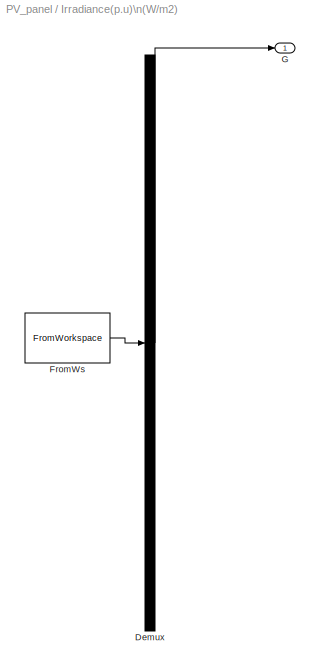
MODEL PV_panel
KIND model
BLOCK [Reference] Controlled Current\nSource  REF=fl_lib/Electrical/Electrical Sources/Controlled Current\nSource
  ClassName = controlled_current
  ComponentPath = foundation.electrical.sources.controlled_current
  ComponentVariantNames = controlled_current
  ComponentVariants = foundation.electrical.sources.controlled_current
  InternalSimscapePortConfiguration = {\"Bottom\":[],\"Left\":[{\"id\":\"head\",\"label\":\"\",\"type\":\"foundation.electrical.electrical\"}],\"Right\":[{\"id\":\"iT\",\"label\":\"\",\"type\":\"input\"},{\"id\":\"tail\",\"label\":\"\",\"type\":\"foundation.electrical.electrical\"}],\"Top\":[]}
  LogSimulationData = off
  Ports = [0, 0, 0, 0, 0, 1, 2]
  SID = 362
  SchemaVersion = 1
  SourceBlock = fl_lib/Electrical/Electrical Sources/Controlled Current\nSource
  SourceFile = foundation.electrical.sources.controlled_current
  SourceProductBaseCode = SS
  SourceProductName = Simscape
  SourceType = Controlled Current\nSource
BLOCK [Reference] Current Sensor  REF=fl_lib/Electrical/Electrical Sensors/Current Sensor
  ClassName = current
  ComponentPath = foundation.electrical.sensors.current
  ComponentVariantNames = current
  ComponentVariants = foundation.electrical.sensors.current
  InternalSimscapePortConfiguration = {\"Bottom\":[],\"Left\":[{\"id\":\"p\",\"label\":\"+\",\"type\":\"foundation.electrical.electrical\"}],\"Right\":[{\"id\":\"I\",\"label\":\"I\",\"type\":\"output\"},{\"id\":\"n\",\"label\":\"-\",\"type\":\"foundation.electrical.electrical\"}],\"Top\":[]}
  LogSimulationData = off
  Ports = [0, 0, 0, 0, 0, 1, 2]
  SID = 363
  SchemaVersion = 1
  SourceBlock = fl_lib/Electrical/Electrical Sensors/Current Sensor
  SourceFile = foundation.electrical.sensors.current
  SourceProductBaseCode = SS
  SourceProductName = Simscape
  SourceType = Current Sensor
BLOCK [Reference] Diode  REF=ee_lib/Semiconductors &\nConverters/Diode
  BV = Inf
  BV_conf = compiletime
  BV_unit = V
  CJ = 0
  CJ0 = 0
  CJ0_conf = compiletime
  CJ0_unit = pF
  CJ_conf = compiletime
  CJ_unit = pF
  C_param = 1
  C_param_conf = compiletime
  C_param_unit = 1
  ClassName = Simscape variant
  ComponentPath = ee.semiconductors.diode
  ComponentVariantNames = No thermal port, Show thermal port
  ComponentVariants = ee.semiconductors.diode, ee.semiconductors.diode_thermal
  Cvec = [  3.5 1 0.4 ]
  Cvec_conf = compiletime
  Cvec_unit = pF
  EG = 1.11
  EG_conf = compiletime
  EG_param = ee.enum.diode.egapParam.material_si
  EG_param_conf = compiletime
  EG_param_unit = 1
  EG_unit = eV
  FC = 0.5
  FC_conf = compiletime
  FC_unit = 1
  Goff = 1e-08
  Goff_conf = compiletime
  Goff_unit = S
  I1 = 0.07
  I12 = [  0.07 2.2 ]
  I12_conf = compiletime
  I12_unit = A
  I1_T2 = 0.245
  I1_T2_conf = compiletime
  I1_T2_unit = A
  I1_conf = compiletime
  I1_unit = A
  IS = 1.541765286972375e-008
  IS_T2 = 1.25e-7
  IS_T2_conf = compiletime
  IS_T2_unit = A
  IS_conf = compiletime
  IS_unit = A
  InternalSimscapePortConfiguration = {\"Bottom\":[],\"Left\":[{\"id\":\"p\",\"label\":\"\",\"type\":\"foundation.electrical.electrical\"}],\"Right\":[{\"id\":\"n\",\"label\":\"\",\"type\":\"foundation.electrical.electrical\"}],\"Top\":[]}
  LogSimulationData = off
  Mgrad = 0.5
  Mgrad_conf = compiletime
  Mgrad_unit = 1
  ModelType = ee.enum.diode.modelType.exponential
  ModelType_conf = compiletime
  ModelType_unit = 1
  N_parallel = 1
  N_parallel_conf = compiletime
  N_parallel_unit = 1
  N_series = 1
  N_series_conf = compiletime
  N_series_unit = 1
  Ports = [0, 0, 0, 0, 0, 1, 1]
  Q_param = ee.enum.diode.recoveryParam.off
  Q_param_conf = compiletime
  Q_param_unit = 1
  Qrr = 1500
  Qrr_conf = compiletime
  Qrr_unit = s*uA
  RS = 0.001
  RS_conf = compiletime
  RS_unit = Ohm
  Ron = 0.3
  Ron_conf = compiletime
  Ron_unit = Ohm
  Rth = [0, 10]
  Rth_Foster = [4, 6]
  Rth_Foster_conf = compiletime
  Rth_Foster_unit = K/W
  Rth_conf = compiletime
  Rth_unit = K/W
  Rz = 0.3
  Rz_conf = compiletime
  Rz_unit = Ohm
  SID = 364
  SchemaVersion = 1
  SourceBlock = ee_lib/Semiconductors &\nConverters/Diode
  SourceFile = ee.semiconductors.diode
  SourceProductBaseCode = PS
  SourceProductName = Simscape Electrical
  SourceType = Diode
  TT = 50
  TT_conf = compiletime
  TT_unit = ns
  T_param = ee.enum.diode.temperatureParam.off
  T_param_conf = compiletime
  T_param_unit = 1
  Tdevice = 25
  Tdevice_conf = compiletime
  Tdevice_unit = degC
  Tmeas = 25
  Tmeas2 = 125
  Tmeas2_conf = compiletime
  Tmeas2_unit = degC
  Tmeas_conf = compiletime
  Tmeas_unit = C
  V1 = 0.7
  V12 = [  15 21 ]
  V12_conf = compiletime
  V12_unit = V
  V1_T2 = 0.5
  V1_T2_conf = compiletime
  V1_T2_unit = V
  V1_conf = compiletime
  V1_unit = V
  VJ = 1
  VJ_conf = compiletime
  VJ_unit = V
  Vf = 0.6
  Vf_conf = compiletime
  Vf_unit = V
  Vvec = [  0.1 10 100 ]
  Vvec_conf = compiletime
  Vvec_unit = V
  XTI = 3
  XTI_conf = compiletime
  XTI_param = ee.enum.diode.xtiParam.pn
  XTI_param_conf = compiletime
  XTI_param_unit = 1
  XTI_unit = 1
  dBVdT = 0
  dBVdT_conf = compiletime
  dBVdT_unit = V/K
  didt = -750
  didt_conf = compiletime
  didt_unit = A/us
  ec = 1
  ec_conf = compiletime
  ec_unit = 1
  i = 0
  iF = 4
  iF_conf = compiletime
  iF_unit = A
  iRM = -7.15
  iRM_conf = compiletime
  iRM_unit = A
  i_capacitor = 0
  i_capacitor_nominal_specify = off
  i_capacitor_nominal_unit = A
  i_capacitor_nominal_value = 1
  i_capacitor_priority = None
  i_capacitor_specify = off
  i_capacitor_unit = A
  i_nominal_specify = off
  i_nominal_unit = A
  i_nominal_value = 1
  i_priority = None
  i_specify = off
  i_unit = A
  power_dissipated = 0
  power_dissipated_nominal_specify = off
  power_dissipated_nominal_unit = W
  power_dissipated_nominal_value = 1
  power_dissipated_priority = None
  power_dissipated_specify = off
  power_dissipated_unit = W
  prmExp = 1
  prmExp_conf = compiletime
  prmExp_unit = 1
  tau = 100
  tau_conf = compiletime
  tau_unit = ns
  thermal_mass = [0, 1]
  thermal_mass_Foster = [1.5, 3]
  thermal_mass_Foster_conf = compiletime
  thermal_mass_Foster_unit = J/K
  thermal_mass_conf = compiletime
  thermal_mass_initial_temperatures = [25, 25]
  thermal_mass_initial_temperatures_conf = compiletime
  thermal_mass_initial_temperatures_unit = degC
  thermal_mass_parameterization = ee.enum.thermalNetwork.timeconstant
  thermal_mass_parameterization_conf = compiletime
  thermal_mass_parameterization_unit = 1
  thermal_mass_unit = J/K
  thermal_network_parameterization = ee.enum.thermalNetworkTopology.cauer
  thermal_network_parameterization_conf = compiletime
  thermal_network_parameterization_unit = 1
  thermal_time_constant = [0, 10]
  thermal_time_constant_Foster = [6, 18]
  thermal_time_constant_Foster_conf = compiletime
  thermal_time_constant_Foster_unit = s
  thermal_time_constant_conf = compiletime
  thermal_time_constant_unit = s
  trr = 115
  trr_conf = compiletime
  trr_factor = 3
  trr_factor_conf = compiletime
  trr_factor_unit = 1
  trr_unit = ns
  v = 0
  v_capacitor = 0
  v_capacitor_nominal_specify = off
  v_capacitor_nominal_unit = V
  v_capacitor_nominal_value = 1
  v_capacitor_priority = None
  v_capacitor_specify = off
  v_capacitor_unit = V
  v_nominal_specify = off
  v_nominal_unit = V
  v_nominal_value = 1
  v_priority = None
  v_specify = off
  v_unit = V
BLOCK [Reference] Electrical Reference  REF=fl_lib/Electrical/Electrical Elements/Electrical Reference
  ClassName = reference
  ComponentPath = foundation.electrical.elements.reference
  ComponentVariantNames = reference
  ComponentVariants = foundation.electrical.elements.reference
  InternalSimscapePortConfiguration = {\"Bottom\":[],\"Left\":[{\"id\":\"V\",\"label\":\"\",\"type\":\"foundation.electrical.electrical\"}],\"Right\":[],\"Top\":[]}
  LogSimulationData = off
  Ports = [0, 0, 0, 0, 0, 1]
  SID = 365
  SchemaVersion = 1
  SourceBlock = fl_lib/Electrical/Electrical Elements/Electrical Reference
  SourceFile = foundation.electrical.elements.reference
  SourceProductBaseCode = SS
  SourceProductName = Simscape
  SourceType = Electrical Reference
BLOCK [Goto] Goto1
  GotoTag = V
  SID = 820
BLOCK [From] I1
  GotoTag = V
  SID = 819
BLOCK [Display] Id1
  Decimation = 1
  Ports = [1]
  SID = 366
BLOCK [Display] Id2
  Decimation = 1
  Ports = [1]
  SID = 367
BLOCK [Display] Id3
  Decimation = 1
  Ports = [1]
  SID = 368
BLOCK [Display] Id5
  Decimation = 1
  Ports = [1]
  SID = 369
BLOCK [SubSystem] Irradiance(p.u)\n(W//m2)
  ClipboardFcn = sigbuilder_block('clipboard');
  CloseFcn = sigbuilder_block('close');
  ContinueFcn = sigbuilder_block('continue')
  CopyFcn = sigbuilder_block('copy');
  DeleteFcn = sigbuilder_block('delete');
  LoadFcn = sigbuilder_block('load');
  MaskHideContents = on
  ModelCloseFcn = sigbuilder_block('modelClose');
  NameChangeFcn = sigbuilder_block('namechange');
  OpenFcn = sigbuilder_block('open',[518.25 6 500.25 507 ]);
  PauseFcn = sigbuilder_block('pause')
  Ports = [0, 1]
  PreSaveFcn = sigbuilder_block('preSave');
  RequestExecContextInheritance = off
  SID = 370
  StartFcn = sigbuilder_block('start');
  StopFcn = sigbuilder_block('stop');
  Tag = STV Subsys
BLOCK [Demux] Irradiance(p.u)\n(W//m2)/Demux
  Outputs = 1
  Ports = [1, 1]
  SID = 370:1
  Tag = STV Demux
BLOCK [FromWorkspace] Irradiance(p.u)\n(W//m2)/FromWs
  SID = 370:2
  SampleTime = 0
  SigBuilderData = DataTag0
  Tag = STV FromWs
  VariableName = tuvar
  VnvData = DataTag1
  ZeroCross = on
BLOCK [Outport] Irradiance(p.u)\n(W//m2)/G
  IconDisplay = Port number
  SID = 370:3
  Tag = STV Outport
BLOCK [Reference] PS-Simulink\nConverter  REF=nesl_utility/PS-Simulink\nConverter
  AffineConversion = off
  Frequencies = []
  LeftPortType = input
  PhysicalDomain = network_engine_domain
  Ports = [0, 1, 0, 0, 0, 1]
  PseudoPeriodic = off
  RightPortType = output
  SID = 412
  SourceBlock = nesl_utility/PS-Simulink\nConverter
  SourceProductBaseCode = SS
  SourceProductName = Simscape
  SourceType = PS-Simulink\nConverter
  SubClassName = ps_output
  Unit = 1
BLOCK [Reference] PS-Simulink\nConverter1  REF=nesl_utility/PS-Simulink\nConverter
  AffineConversion = off
  Frequencies = []
  LeftPortType = input
  PhysicalDomain = network_engine_domain
  Ports = [0, 1, 0, 0, 0, 1]
  PseudoPeriodic = off
  RightPortType = output
  SID = 413
  SourceBlock = nesl_utility/PS-Simulink\nConverter
  SourceProductBaseCode = SS
  SourceProductName = Simscape
  SourceType = PS-Simulink\nConverter
  SubClassName = ps_output
  Unit = 1
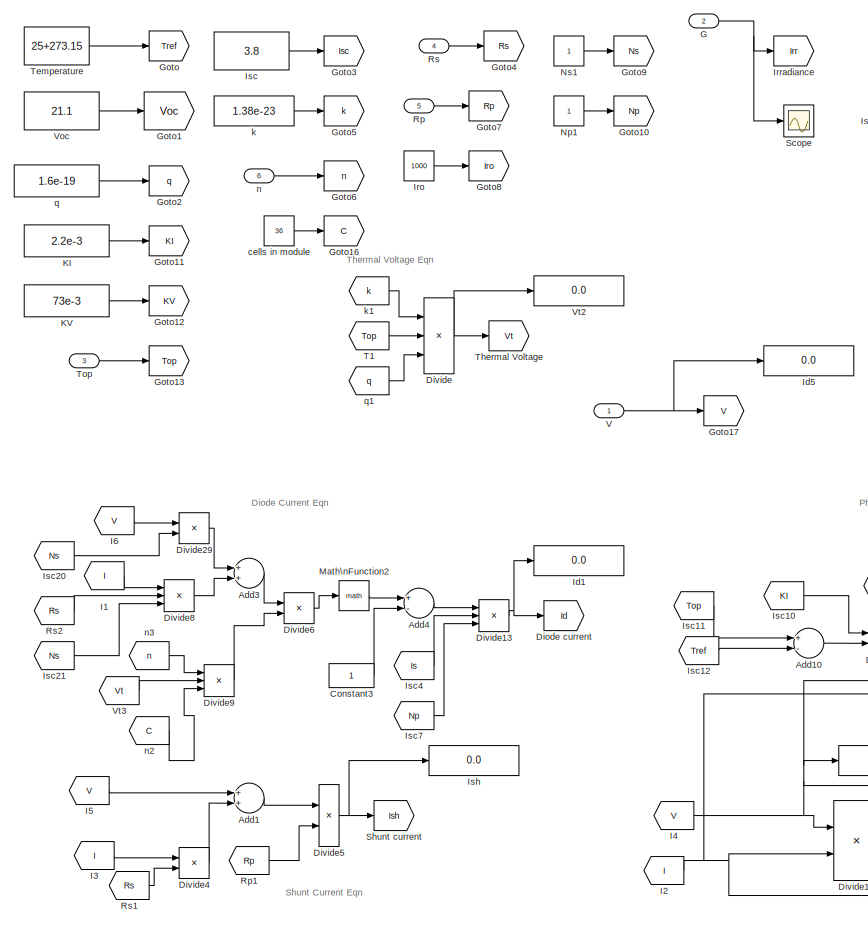
[diagram: PV panel - part 1/3, left side, full height]
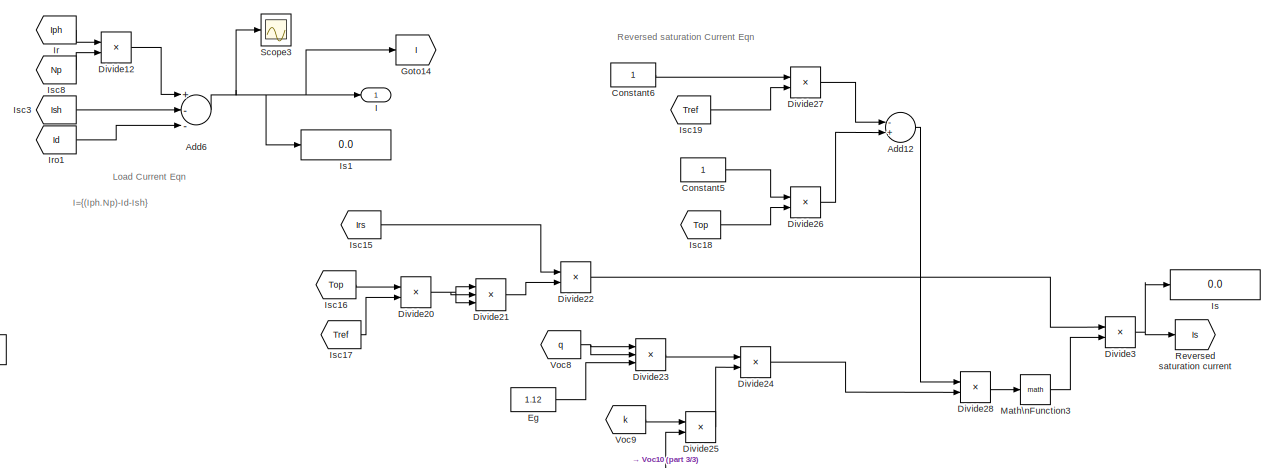
[diagram: PV panel - part 2/3, top right region]
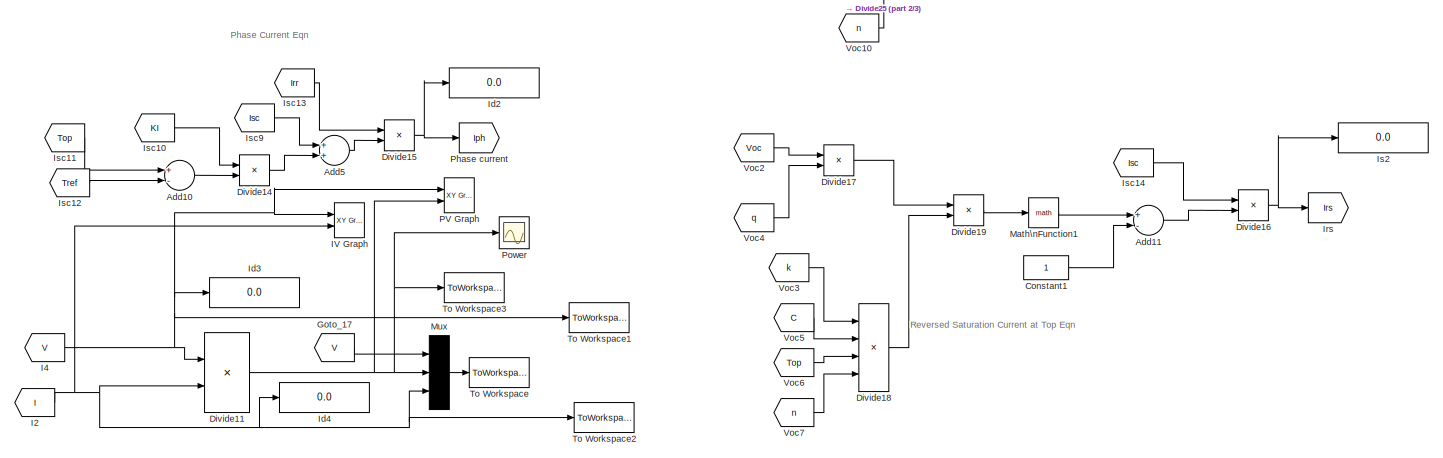
[diagram: PV panel - part 3/3, bottom center region]
BLOCK [SubSystem] PV panel
  Ports = [6, 1]
  RequestExecContextInheritance = off
  SID = 414
BLOCK [Goto] PV panel/                Reversed saturation current
  GotoTag = Is
  SID = 418
BLOCK [Sum] PV panel/Add1
  InputSameDT = off
  OutDataTypeStr = Inherit: Inherit via internal rule
  Ports = [2, 1]
  SID = 419
  SaturateOnIntegerOverflow = off
BLOCK [Sum] PV panel/Add10
  InputSameDT = off
  Inputs = +-
  OutDataTypeStr = Inherit: Inherit via internal rule
  Ports = [2, 1]
  SID = 420
  SaturateOnIntegerOverflow = off
BLOCK [Sum] PV panel/Add11
  InputSameDT = off
  Inputs = +-
  OutDataTypeStr = Inherit: Inherit via internal rule
  Ports = [2, 1]
  SID = 421
  SaturateOnIntegerOverflow = off
BLOCK [Sum] PV panel/Add12
  InputSameDT = off
  Inputs = -+
  OutDataTypeStr = Inherit: Inherit via internal rule
  Ports = [2, 1]
  SID = 422
  SaturateOnIntegerOverflow = off
BLOCK [Sum] PV panel/Add3
  InputSameDT = off
  OutDataTypeStr = Inherit: Inherit via internal rule
  Ports = [2, 1]
  SID = 423
  SaturateOnIntegerOverflow = off
BLOCK [Sum] PV panel/Add4
  InputSameDT = off
  Inputs = +-
  OutDataTypeStr = Inherit: Inherit via internal rule
  Ports = [2, 1]
  SID = 424
  SaturateOnIntegerOverflow = off
BLOCK [Sum] PV panel/Add5
  InputSameDT = off
  OutDataTypeStr = Inherit: Inherit via internal rule
  Ports = [2, 1]
  SID = 425
  SaturateOnIntegerOverflow = off
BLOCK [Sum] PV panel/Add6
  InputSameDT = off
  Inputs = +--
  OutDataTypeStr = Inherit: Inherit via internal rule
  Ports = [3, 1]
  SID = 426
  SaturateOnIntegerOverflow = off
BLOCK [Constant] PV panel/Constant1
  SID = 427
BLOCK [Constant] PV panel/Constant3
  SID = 428
BLOCK [Constant] PV panel/Constant5
  SID = 430
BLOCK [Constant] PV panel/Constant6
  SID = 431
BLOCK [Goto] PV panel/Diode current
  GotoTag = Id
  SID = 432
BLOCK [Product] PV panel/Divide
  InputSameDT = off
  Inputs = **/
  OutDataTypeStr = Inherit: Inherit via internal rule
  Ports = [3, 1]
  RndMeth = Floor
  SID = 433
  SaturateOnIntegerOverflow = off
BLOCK [Product] PV panel/Divide11
  InputSameDT = off
  Inputs = **
  OutDataTypeStr = Inherit: Inherit via internal rule
  Ports = [2, 1]
  RndMeth = Floor
  SID = 434
  SaturateOnIntegerOverflow = off
BLOCK [Product] PV panel/Divide12
  InputSameDT = off
  Inputs = **
  OutDataTypeStr = Inherit: Inherit via internal rule
  Ports = [2, 1]
  RndMeth = Floor
  SID = 435
  SaturateOnIntegerOverflow = off
BLOCK [Product] PV panel/Divide13
  InputSameDT = off
  Inputs = ***
  OutDataTypeStr = Inherit: Inherit via internal rule
  Ports = [3, 1]
  RndMeth = Floor
  SID = 436
  SaturateOnIntegerOverflow = off
BLOCK [Product] PV panel/Divide14
  InputSameDT = off
  Inputs = **
  OutDataTypeStr = Inherit: Inherit via internal rule
  Ports = [2, 1]
  RndMeth = Floor
  SID = 437
  SaturateOnIntegerOverflow = off
BLOCK [Product] PV panel/Divide15
  InputSameDT = off
  Inputs = **
  OutDataTypeStr = Inherit: Inherit via internal rule
  Ports = [2, 1]
  RndMeth = Floor
  SID = 438
  SaturateOnIntegerOverflow = off
BLOCK [Product] PV panel/Divide16
  InputSameDT = off
  Inputs = */
  OutDataTypeStr = Inherit: Inherit via internal rule
  Ports = [2, 1]
  RndMeth = Floor
  SID = 439
  SaturateOnIntegerOverflow = off
BLOCK [Product] PV panel/Divide17
  InputSameDT = off
  Inputs = **
  OutDataTypeStr = Inherit: Inherit via internal rule
  Ports = [2, 1]
  RndMeth = Floor
  SID = 440
  SaturateOnIntegerOverflow = off
BLOCK [Product] PV panel/Divide18
  InputSameDT = off
  Inputs = ****
  OutDataTypeStr = Inherit: Inherit via internal rule
  Ports = [4, 1]
  RndMeth = Floor
  SID = 441
  SaturateOnIntegerOverflow = off
BLOCK [Product] PV panel/Divide19
  InputSameDT = off
  Inputs = */
  OutDataTypeStr = Inherit: Inherit via internal rule
  Ports = [2, 1]
  RndMeth = Floor
  SID = 442
  SaturateOnIntegerOverflow = off
BLOCK [Product] PV panel/Divide20
  InputSameDT = off
  Inputs = */
  OutDataTypeStr = Inherit: Inherit via internal rule
  Ports = [2, 1]
  RndMeth = Floor
  SID = 443
  SaturateOnIntegerOverflow = off
BLOCK [Product] PV panel/Divide21
  InputSameDT = off
  Inputs = ***
  OutDataTypeStr = Inherit: Inherit via internal rule
  Ports = [3, 1]
  RndMeth = Floor
  SID = 444
  SaturateOnIntegerOverflow = off
BLOCK [Product] PV panel/Divide22
  InputSameDT = off
  Inputs = **
  OutDataTypeStr = Inherit: Inherit via internal rule
  Ports = [2, 1]
  RndMeth = Floor
  SID = 445
  SaturateOnIntegerOverflow = off
BLOCK [Product] PV panel/Divide23
  InputSameDT = off
  Inputs = ***
  OutDataTypeStr = Inherit: Inherit via internal rule
  Ports = [3, 1]
  RndMeth = Floor
  SID = 446
  SaturateOnIntegerOverflow = off
BLOCK [Product] PV panel/Divide24
  InputSameDT = off
  Inputs = */
  OutDataTypeStr = Inherit: Inherit via internal rule
  Ports = [2, 1]
  RndMeth = Floor
  SID = 447
  SaturateOnIntegerOverflow = off
BLOCK [Product] PV panel/Divide25
  InputSameDT = off
  Inputs = **
  OutDataTypeStr = Inherit: Inherit via internal rule
  Ports = [2, 1]
  RndMeth = Floor
  SID = 448
  SaturateOnIntegerOverflow = off
BLOCK [Product] PV panel/Divide26
  InputSameDT = off
  Inputs = */
  OutDataTypeStr = Inherit: Inherit via internal rule
  Ports = [2, 1]
  RndMeth = Floor
  SID = 449
  SaturateOnIntegerOverflow = off
BLOCK [Product] PV panel/Divide27
  InputSameDT = off
  Inputs = */
  OutDataTypeStr = Inherit: Inherit via internal rule
  Ports = [2, 1]
  RndMeth = Floor
  SID = 450
  SaturateOnIntegerOverflow = off
BLOCK [Product] PV panel/Divide28
  InputSameDT = off
  Inputs = **
  OutDataTypeStr = Inherit: Inherit via internal rule
  Ports = [2, 1]
  RndMeth = Floor
  SID = 451
  SaturateOnIntegerOverflow = off
BLOCK [Product] PV panel/Divide29
  InputSameDT = off
  Inputs = */
  OutDataTypeStr = Inherit: Inherit via internal rule
  Ports = [2, 1]
  RndMeth = Floor
  SID = 452
  SaturateOnIntegerOverflow = off
BLOCK [Product] PV panel/Divide3
  InputSameDT = off
  Inputs = **
  OutDataTypeStr = Inherit: Inherit via internal rule
  Ports = [2, 1]
  RndMeth = Floor
  SID = 453
  SaturateOnIntegerOverflow = off
BLOCK [Product] PV panel/Divide4
  InputSameDT = off
  Inputs = **
  OutDataTypeStr = Inherit: Inherit via internal rule
  Ports = [2, 1]
  RndMeth = Floor
  SID = 454
  SaturateOnIntegerOverflow = off
BLOCK [Product] PV panel/Divide5
  InputSameDT = off
  Inputs = */
  OutDataTypeStr = Inherit: Inherit via internal rule
  Ports = [2, 1]
  RndMeth = Floor
  SID = 455
  SaturateOnIntegerOverflow = off
BLOCK [Product] PV panel/Divide6
  InputSameDT = off
  Inputs = */
  OutDataTypeStr = Inherit: Inherit via internal rule
  Ports = [2, 1]
  RndMeth = Floor
  SID = 456
  SaturateOnIntegerOverflow = off
BLOCK [Product] PV panel/Divide8
  InputSameDT = off
  Inputs = **/
  OutDataTypeStr = Inherit: Inherit via internal rule
  Ports = [3, 1]
  RndMeth = Floor
  SID = 457
  SaturateOnIntegerOverflow = off
BLOCK [Product] PV panel/Divide9
  InputSameDT = off
  Inputs = ***
  OutDataTypeStr = Inherit: Inherit via internal rule
  Ports = [3, 1]
  RndMeth = Floor
  SID = 458
  SaturateOnIntegerOverflow = off
BLOCK [Constant] PV panel/Eg
  SID = 429
  Value = 1.12
BLOCK [Inport] PV panel/G
  IconDisplay = Port number
  Port = 2
  SID = 416
BLOCK [Goto] PV panel/Goto
  GotoTag = Tref
  SID = 459
BLOCK [Goto] PV panel/Goto1
  GotoTag = Voc
  SID = 460
BLOCK [Goto] PV panel/Goto10
  GotoTag = Np
  SID = 461
BLOCK [Goto] PV panel/Goto11
  GotoTag = KI
  SID = 462
BLOCK [Goto] PV panel/Goto12
  GotoTag = KV
  SID = 463
BLOCK [Goto] PV panel/Goto13
  GotoTag = Top
  SID = 464
BLOCK [Goto] PV panel/Goto14
  GotoTag = I
  SID = 465
BLOCK [Goto] PV panel/Goto16
  GotoTag = C
  SID = 467
BLOCK [Goto] PV panel/Goto17
  GotoTag = V
  SID = 468
BLOCK [Goto] PV panel/Goto2
  GotoTag = q
  SID = 469
BLOCK [Goto] PV panel/Goto3
  GotoTag = Isc
  SID = 470
BLOCK [Goto] PV panel/Goto4
  GotoTag = Rs
  SID = 471
BLOCK [Goto] PV panel/Goto5
  GotoTag = k
  SID = 472
BLOCK [Goto] PV panel/Goto6
  GotoTag = n
  SID = 473
BLOCK [Goto] PV panel/Goto7
  GotoTag = Rp
  SID = 474
BLOCK [Goto] PV panel/Goto8
  GotoTag = Iro
  SID = 475
BLOCK [Goto] PV panel/Goto9
  GotoTag = Ns
  SID = 476
BLOCK [From] PV panel/Goto_17
  GotoTag = V
  SID = 477
BLOCK [Outport] PV panel/I
  IconDisplay = Port number
  SID = 562
BLOCK [From] PV panel/I1
  GotoTag = I
  SID = 478
BLOCK [From] PV panel/I2
  GotoTag = I
  SID = 479
BLOCK [From] PV panel/I3
  GotoTag = I
  SID = 480
BLOCK [From] PV panel/I4
  GotoTag = V
  SID = 481
BLOCK [From] PV panel/I5
  GotoTag = V
  SID = 482
BLOCK [From] PV panel/I6
  GotoTag = V
  SID = 483
BLOCK [Reference] PV panel/IV Graph  REF=simulink/Sinks/XY Graph
  Ports = [2]
  SID = 814
  SourceBlock = simulink/Sinks/XY Graph
  SourceProductBaseCode = SL
  SourceProductName = Simulink
  SourceType = XY scope.
  st = -1
  xmax = 23
  xmin = 0
  ymax = 4
  ymin = 0
BLOCK [Display] PV panel/Id1
  Decimation = 1
  Ports = [1]
  SID = 484
BLOCK [Display] PV panel/Id2
  Decimation = 1
  Ports = [1]
  SID = 485
BLOCK [Display] PV panel/Id3
  Decimation = 1
  Ports = [1]
  SID = 486
BLOCK [Display] PV panel/Id4
  Decimation = 1
  Ports = [1]
  SID = 487
BLOCK [Display] PV panel/Id5
  Decimation = 1
  Ports = [1]
  SID = 488
BLOCK [From] PV panel/Ir
  GotoTag = Iph
  SID = 489
BLOCK [Constant] PV panel/Iro
  SID = 490
  Value = 1000
BLOCK [From] PV panel/Iro1
  GotoTag = Id
  SID = 491
BLOCK [Goto] PV panel/Irradiance
  GotoTag = Irr
  SID = 492
BLOCK [Goto] PV panel/Irs
  GotoTag = Irs
  SID = 493
BLOCK [Display] PV panel/Is
  Decimation = 1
  Ports = [1]
  SID = 494
BLOCK [Display] PV panel/Is1
  Decimation = 1
  Ports = [1]
  SID = 495
BLOCK [Display] PV panel/Is2
  Decimation = 1
  Ports = [1]
  SID = 496
BLOCK [Constant] PV panel/Isc
  SID = 497
  Value = 3.8
BLOCK [From] PV panel/Isc10
  GotoTag = KI
  SID = 498
BLOCK [From] PV panel/Isc11
  GotoTag = Top
  SID = 499
BLOCK [From] PV panel/Isc12
  GotoTag = Tref
  SID = 500
BLOCK [From] PV panel/Isc13
  GotoTag = Irr
  SID = 501
BLOCK [From] PV panel/Isc14
  GotoTag = Isc
  SID = 502
BLOCK [From] PV panel/Isc15
  GotoTag = Irs
  SID = 503
BLOCK [From] PV panel/Isc16
  GotoTag = Top
  SID = 504
BLOCK [From] PV panel/Isc17
  GotoTag = Tref
  SID = 505
BLOCK [From] PV panel/Isc18
  GotoTag = Top
  SID = 506
BLOCK [From] PV panel/Isc19
  GotoTag = Tref
  SID = 507
BLOCK [From] PV panel/Isc20
  GotoTag = Ns
  SID = 508
BLOCK [From] PV panel/Isc21
  GotoTag = Ns
  SID = 509
BLOCK [From] PV panel/Isc3
  GotoTag = Ish
  SID = 510
BLOCK [From] PV panel/Isc4
  GotoTag = Is
  SID = 511
BLOCK [From] PV panel/Isc7
  GotoTag = Np
  SID = 512
BLOCK [From] PV panel/Isc8
  GotoTag = Np
  SID = 513
BLOCK [From] PV panel/Isc9
  GotoTag = Isc
  SID = 514
BLOCK [Display] PV panel/Ish
  Decimation = 1
  Ports = [1]
  SID = 515
BLOCK [Constant] PV panel/KI
  SID = 560
  Value = 2.2e-3
BLOCK [Constant] PV panel/KV
  SID = 561
  Value = 73e-3
BLOCK [Math] PV panel/Math\nFunction1
  Ports = [1, 1]
  SID = 516
BLOCK [Math] PV panel/Math\nFunction2
  Ports = [1, 1]
  SID = 517
BLOCK [Math] PV panel/Math\nFunction3
  Ports = [1, 1]
  SID = 518
BLOCK [Mux] PV panel/Mux
  DisplayOption = bar
  Inputs = 3
  Ports = [3, 1]
  SID = 519
BLOCK [Constant] PV panel/Np1
  SID = 829
BLOCK [Constant] PV panel/Ns1
  SID = 830
BLOCK [Reference] PV panel/PV Graph  REF=simulink/Sinks/XY Graph
  Ports = [2]
  SID = 815
  SourceBlock = simulink/Sinks/XY Graph
  SourceProductBaseCode = SL
  SourceProductName = Simulink
  SourceType = XY scope.
  st = -1
  xmax = 23
  xmin = 0
  ymax = 61
  ymin = 0
BLOCK [Goto] PV panel/Phase current 
  GotoTag = Iph
  SID = 466
BLOCK [Scope] PV panel/Power
  Floating = off
  NumInputPorts = 1
  Ports = [1]
  SID = 522
  ScopeSpecificationString = C++SS(StrPVP('Location','[6, 43, 1286, 758]'),StrPVP('Open','off'),MxPVP('AxesTitles',54,'struct(''axes1'',''%<SignalLabel>'')'),StrPVP('TimeRange','0.7'),StrPVP('YMin','-2.5e-006'),StrPVP('YMax','4e-006'),StrPVP('SaveName','ScopeData1'),StrPVP('DataFormat','StructureWithTime'),StrPVP('BlockParamSampleTime','0'),StrPVP('LimitDataPoints','on'),StrPVP('Decimation','1'),StrPVP('BlockParamSampleInput'...<+8ch>
BLOCK [Inport] PV panel/Rp
  IconDisplay = Port number
  Port = 5
  SID = 822
BLOCK [From] PV panel/Rp1
  GotoTag = Rp
  SID = 524
BLOCK [Inport] PV panel/Rs
  IconDisplay = Port number
  Port = 4
  SID = 821
BLOCK [From] PV panel/Rs1
  GotoTag = Rs
  SID = 526
BLOCK [From] PV panel/Rs2
  GotoTag = Rs
  SID = 527
BLOCK [Scope] PV panel/Scope
  Floating = off
  NumInputPorts = 1
  Ports = [1]
  SID = 528
  ScopeSpecificationString = C++SS(StrPVP('Location','[188, 390, 512, 629]'),StrPVP('Open','off'),MxPVP('AxesTitles',54,'struct(''axes1'',''%<SignalLabel>'')'),StrPVP('SaveName','ScopeData2'),StrPVP('DataFormat','StructureWithTime'),StrPVP('BlockParamSampleTime','0'),StrPVP('LimitDataPoints','on'),StrPVP('Decimation','1'),StrPVP('BlockParamSampleInput','off'))
BLOCK [Scope] PV panel/Scope3
  Floating = off
  NumInputPorts = 1
  Ports = [1]
  SID = 529
  ScopeSpecificationString = C++SS(StrPVP('Location','[1, 48, 1367, 767]'),StrPVP('Open','off'),MxPVP('AxesTitles',54,'struct(''axes1'',''%<SignalLabel>'')'),StrPVP('YMin','30.1283'),StrPVP('YMax','30.1303'),StrPVP('DataFormat','StructureWithTime'),StrPVP('BlockParamSampleTime','0'),StrPVP('LimitDataPoints','on'),StrPVP('Decimation','1'),StrPVP('BlockParamSampleInput','off'))
BLOCK [Goto] PV panel/Shunt current
  GotoTag = Ish
  SID = 530
BLOCK [From] PV panel/T1
  GotoTag = Top
  SID = 531
BLOCK [Constant] PV panel/Temperature
  SID = 532
  Value = 25+273.15
BLOCK [Goto] PV panel/Thermal Voltage
  GotoTag = Vt
  SID = 533
BLOCK [ToWorkspace] PV panel/To Workspace
  MaxDataPoints = inf
  Ports = [1]
  SID = 534
  SampleTime = -1
  VariableName = simout
BLOCK [ToWorkspace] PV panel/To Workspace1
  MaxDataPoints = inf
  Ports = [1]
  SID = 535
  SampleTime = -1
  VariableName = voltage
BLOCK [ToWorkspace] PV panel/To Workspace2
  MaxDataPoints = inf
  Ports = [1]
  SID = 536
  SampleTime = -1
  VariableName = current
BLOCK [ToWorkspace] PV panel/To Workspace3
  MaxDataPoints = inf
  Ports = [1]
  SID = 537
  SampleTime = -1
  VariableName = power
BLOCK [Inport] PV panel/Top
  IconDisplay = Port number
  Port = 3
  SID = 417
BLOCK [Inport] PV panel/V
  IconDisplay = Port number
  SID = 415
BLOCK [Constant] PV panel/Voc
  SID = 540
  Value = 21.1
BLOCK [From] PV panel/Voc10
  GotoTag = n
  SID = 541
BLOCK [From] PV panel/Voc2
  GotoTag = Voc
  SID = 542
BLOCK [From] PV panel/Voc3
  GotoTag = k
  SID = 543
BLOCK [From] PV panel/Voc4
  GotoTag = q
  SID = 544
BLOCK [From] PV panel/Voc5
  GotoTag = C
  SID = 545
BLOCK [From] PV panel/Voc6
  GotoTag = Top
  SID = 546
BLOCK [From] PV panel/Voc7
  GotoTag = n
  SID = 547
BLOCK [From] PV panel/Voc8
  GotoTag = q
  SID = 548
BLOCK [From] PV panel/Voc9
  GotoTag = k
  SID = 549
BLOCK [Display] PV panel/Vt2
  Decimation = 1
  Format = long_e
  Ports = [1]
  SID = 550
BLOCK [From] PV panel/Vt3
  GotoTag = Vt
  SID = 551
BLOCK [Constant] PV panel/cells in module
  SID = 828
  Value = 36
BLOCK [Constant] PV panel/k
  SID = 553
  Value = 1.38e-23
BLOCK [From] PV panel/k1
  GotoTag = k
  SID = 554
BLOCK [Inport] PV panel/n
  IconDisplay = Port number
  Port = 6
  SID = 823
BLOCK [From] PV panel/n2
  GotoTag = C
  SID = 556
BLOCK [From] PV panel/n3
  GotoTag = n
  SID = 557
BLOCK [Constant] PV panel/q
  SID = 558
  Value = 1.6e-19
BLOCK [From] PV panel/q1
  GotoTag = q
  SID = 559
BLOCK [Reference] Ramp  REF=simulink/Sources/Ramp
  InitialOutput = 0
  Ports = [0, 1]
  SID = 563
  SourceBlock = simulink/Sources/Ramp
  SourceProductBaseCode = SL
  SourceProductName = Simulink
  SourceType = Ramp
  VectorParams1D = on
  slope = 7777
  start = 0
BLOCK [Constant] Rp
  SID = 825
  Value = 360.002
BLOCK [Constant] Rs
  SID = 826
  Value = 0.18
BLOCK [Reference] Simulink-PS\nConverter  REF=nesl_utility/Simulink-PS\nConverter
  AffineConversion = off
  FilteringAndDerivatives = zero
  Frequencies = []
  InputFilterTimeConstant = .000001
  LeftPortType = input
  NoiseDistribution = none
  NoiseParameters = []
  PhysicalDomain = network_engine_domain
  Ports = [1, 0, 0, 0, 0, 0, 1]
  PseudoPeriodic = off
  RightPortType = output
  SID = 567
  SimscapeFilterOrder = 1
  SourceBlock = nesl_utility/Simulink-PS\nConverter
  SourceProductBaseCode = SS
  SourceProductName = Simscape
  SourceType = Simulink-PS\nConverter
  SubClassName = ps_input
  UdotUserProvided = 0
  Unit = 1
BLOCK [Reference] Simulink-PS\nConverter1  REF=nesl_utility/Simulink-PS\nConverter
  AffineConversion = off
  FilteringAndDerivatives = zero
  Frequencies = []
  InputFilterTimeConstant = .000001
  LeftPortType = input
  NoiseDistribution = none
  NoiseParameters = []
  PhysicalDomain = network_engine_domain
  Ports = [1, 0, 0, 0, 0, 0, 1]
  PseudoPeriodic = off
  RightPortType = output
  SID = 568
  SimscapeFilterOrder = 1
  SourceBlock = nesl_utility/Simulink-PS\nConverter
  SourceProductBaseCode = SS
  SourceProductName = Simscape
  SourceType = Simulink-PS\nConverter
  SubClassName = ps_input
  UdotUserProvided = 0
  Unit = 1
BLOCK [Reference] Solver\nConfiguration  REF=nesl_utility/Solver\nConfiguration
  AbsTol = 1e-06
  AutomaticFiltering = on
  DelaysMemoryBudget = 1024
  DoDC = on
  DoFixedCost = off
  EnableSwitchedLinearOptims = on
  EquationFormulation = NE_TIME_EF
  FilteringTimeConstant = 0.001
  FrequencyDomain = off
  Harmonics = []
  LeftPortType = input
  LinearAlgebra = Sparse
  LocalSolverChoice = NE_BACKWARD_EULER_ADVANCER
  LocalSolverSampleTime = .0001
  MaxModeIter = 2
  MaxNonlinIter = 8
  MinStep = 1e-09
  NumHomotopyIterations = 100
  PartitionMemoryBudget = 1024
  PartitionMethod = FAST
  PartitionStorageMethod = AS_NEEDED
  PhasorMode = off
  PhasorModeNumHarmonics = 1
  PhysicalDomain = network_engine_domain
  Ports = [0, 0, 0, 0, 0, 0, 1]
  Profile = off
  RelTol = 0.001
  ResidualTolerance = 1e-8
  RevertToSquareIcSolve = off
  RightPortType = generic
  SID = 569
  SimulateNoise = off
  SourceBlock = nesl_utility/Solver\nConfiguration
  SourceProductBaseCode = SS
  SourceProductName = Simscape
  SourceType = Solver\nConfiguration
  SubClassName = solver
  ToWorkspace = off
  Tones = []
  UseCCode = off
  UseLocalSampling = off
  UseLocalSolver = on
BLOCK [Constant] Temperature_op
  SID = 570
  Value = 25+273.15
BLOCK [Reference] Variable Resistor  REF=fl_lib/Electrical/Electrical Elements/Variable Resistor
  ClassName = variable_resistor
  ComponentPath = foundation.electrical.elements.variable_resistor
  ComponentVariantNames = variable_resistor
  ComponentVariants = foundation.electrical.elements.variable_resistor
  InternalSimscapePortConfiguration = {\"Bottom\":[],\"Left\":[{\"id\":\"R\",\"label\":\"R\",\"type\":\"input\"},{\"id\":\"p\",\"label\":\"+\",\"type\":\"foundation.electrical.electrical\"}],\"Right\":[{\"id\":\"n\",\"label\":\"-\",\"type\":\"foundation.electrical.electrical\"}],\"Top\":[]}
  LogSimulationData = off
  Ports = [0, 0, 0, 0, 0, 2, 1]
  Rmin = 0
  Rmin_conf = compiletime
  Rmin_unit = Ohm
  SID = 572
  SchemaVersion = 1
  SourceBlock = fl_lib/Electrical/Electrical Elements/Variable Resistor
  SourceFile = foundation.electrical.elements.variable_resistor
  SourceProductBaseCode = SS
  SourceProductName = Simscape
  SourceType = Variable Resistor
  i = 0
  i_nominal_specify = off
  i_nominal_unit = A
  i_nominal_value = 1
  i_priority = None
  i_specify = off
  i_unit = A
  v = 0
  v_nominal_specify = off
  v_nominal_unit = V
  v_nominal_value = 1
  v_priority = None
  v_specify = off
  v_unit = V
BLOCK [Reference] Voltage Sensor  REF=fl_lib/Electrical/Electrical Sensors/Voltage Sensor
  ClassName = voltage
  ComponentPath = foundation.electrical.sensors.voltage
  ComponentVariantNames = voltage
  ComponentVariants = foundation.electrical.sensors.voltage
  InternalSimscapePortConfiguration = {\"Bottom\":[],\"Left\":[{\"id\":\"p\",\"label\":\"+\",\"type\":\"foundation.electrical.electrical\"}],\"Right\":[{\"id\":\"V\",\"label\":\"V\",\"type\":\"output\"},{\"id\":\"n\",\"label\":\"-\",\"type\":\"foundation.electrical.electrical\"}],\"Top\":[]}
  LogSimulationData = off
  Ports = [0, 0, 0, 0, 0, 1, 2]
  SID = 573
  SchemaVersion = 1
  SourceBlock = fl_lib/Electrical/Electrical Sensors/Voltage Sensor
  SourceFile = foundation.electrical.sensors.voltage
  SourceProductBaseCode = SS
  SourceProductName = Simscape
  SourceType = Voltage Sensor
BLOCK [Constant] n
  SID = 827
  Value = 1.36
ANNOTATION (root): Prepared by: Shivananda Pukhrem (<email>)\n 60 watts_36 cells_PV panel_Solarex MSX-60_4th_May_2013
ANNOTATION PV panel: Diode Current Eqn
ANNOTATION PV panel: I={(Iph.Np)-Id-Ish}
ANNOTATION PV panel: Load Current Eqn
ANNOTATION PV panel: Phase Current Eqn
ANNOTATION PV panel: Reversed Saturation Current at Top Eqn
ANNOTATION PV panel: Reversed saturation Current Eqn
ANNOTATION PV panel: Shunt Current Eqn
ANNOTATION PV panel: Thermal Voltage Eqn
LINE I1:1 -> PV panel:1
LINE Irradiance(p.u)\n(W//m2)/Demux:1 -> Irradiance(p.u)\n(W//m2)/G:1
LINE Irradiance(p.u)\n(W//m2)/FromWs:1 -> Irradiance(p.u)\n(W//m2)/Demux:1
LINE Irradiance(p.u)\n(W//m2):1 -> PV panel:2
LINE PS-Simulink\nConverter1:1 -> Id1:1
NET PS-Simulink\nConverter:1 -> Goto1:1, Id2:1
LINE PV panel/Add10:1 -> PV panel/Divide14:2
LINE PV panel/Add11:1 -> PV panel/Divide16:2
LINE PV panel/Add12:1 -> PV panel/Divide28:1
LINE PV panel/Add1:1 -> PV panel/Divide5:1
LINE PV panel/Add3:1 -> PV panel/Divide6:1
LINE PV panel/Add4:1 -> PV panel/Divide13:1
LINE PV panel/Add5:1 -> PV panel/Divide15:2
NET PV panel/Add6:1 -> PV panel/Goto14:1, PV panel/I:1, PV panel/Is1:1, PV panel/Scope3:1
LINE PV panel/Constant1:1 -> PV panel/Add11:2
LINE PV panel/Constant3:1 -> PV panel/Add4:2
LINE PV panel/Constant5:1 -> PV panel/Divide26:1
LINE PV panel/Constant6:1 -> PV panel/Divide27:1
NET PV panel/Divide11:1 -> PV panel/Mux:2, PV panel/PV Graph:2, PV panel/Power:1, PV panel/To Workspace3:1
LINE PV panel/Divide12:1 -> PV panel/Add6:1
NET PV panel/Divide13:1 -> PV panel/Diode current:1, PV panel/Id1:1
LINE PV panel/Divide14:1 -> PV panel/Add5:2
NET PV panel/Divide15:1 -> PV panel/Id2:1, PV panel/Phase current :1
NET PV panel/Divide16:1 -> PV panel/Irs:1, PV panel/Is2:1
LINE PV panel/Divide17:1 -> PV panel/Divide19:1
LINE PV panel/Divide18:1 -> PV panel/Divide19:2
LINE PV panel/Divide19:1 -> PV panel/Math\nFunction1:1
NET PV panel/Divide20:1 -> PV panel/Divide21:1, PV panel/Divide21:2, PV panel/Divide21:3
LINE PV panel/Divide21:1 -> PV panel/Divide22:2
LINE PV panel/Divide22:1 -> PV panel/Divide3:1
LINE PV panel/Divide23:1 -> PV panel/Divide24:1
LINE PV panel/Divide24:1 -> PV panel/Divide28:2
LINE PV panel/Divide25:1 -> PV panel/Divide24:2
LINE PV panel/Divide26:1 -> PV panel/Add12:2
LINE PV panel/Divide27:1 -> PV panel/Add12:1
LINE PV panel/Divide28:1 -> PV panel/Math\nFunction3:1
LINE PV panel/Divide29:1 -> PV panel/Add3:1
NET PV panel/Divide3:1 -> PV panel/                Reversed saturation current:1, PV panel/Is:1
LINE PV panel/Divide4:1 -> PV panel/Add1:2
NET PV panel/Divide5:1 -> PV panel/Ish:1, PV panel/Shunt current:1
LINE PV panel/Divide6:1 -> PV panel/Math\nFunction2:1
LINE PV panel/Divide8:1 -> PV panel/Add3:2
LINE PV panel/Divide9:1 -> PV panel/Divide6:2
NET PV panel/Divide:1 -> PV panel/Thermal Voltage:1, PV panel/Vt2:1
LINE PV panel/Eg:1 -> PV panel/Divide23:3
NET PV panel/G:1 -> PV panel/Irradiance:1, PV panel/Scope:1
LINE PV panel/Goto_17:1 -> PV panel/Mux:1
LINE PV panel/I1:1 -> PV panel/Divide8:1
NET PV panel/I2:1 -> PV panel/Divide11:2, PV panel/IV Graph:2, PV panel/Id4:1, PV panel/Mux:3, PV panel/To Workspace2:1
LINE PV panel/I3:1 -> PV panel/Divide4:1
NET PV panel/I4:1 -> PV panel/Divide11:1, PV panel/IV Graph:1, PV panel/Id3:1, PV panel/PV Graph:1, PV panel/To Workspace1:1
LINE PV panel/I5:1 -> PV panel/Add1:1
LINE PV panel/I6:1 -> PV panel/Divide29:1
LINE PV panel/Ir:1 -> PV panel/Divide12:1
LINE PV panel/Iro1:1 -> PV panel/Add6:3
LINE PV panel/Iro:1 -> PV panel/Goto8:1
LINE PV panel/Isc10:1 -> PV panel/Divide14:1
LINE PV panel/Isc11:1 -> PV panel/Add10:1
LINE PV panel/Isc12:1 -> PV panel/Add10:2
LINE PV panel/Isc13:1 -> PV panel/Divide15:1
LINE PV panel/Isc14:1 -> PV panel/Divide16:1
LINE PV panel/Isc15:1 -> PV panel/Divide22:1
LINE PV panel/Isc16:1 -> PV panel/Divide20:1
LINE PV panel/Isc17:1 -> PV panel/Divide20:2
LINE PV panel/Isc18:1 -> PV panel/Divide26:2
LINE PV panel/Isc19:1 -> PV panel/Divide27:2
LINE PV panel/Isc20:1 -> PV panel/Divide29:2
LINE PV panel/Isc21:1 -> PV panel/Divide8:3
LINE PV panel/Isc3:1 -> PV panel/Add6:2
LINE PV panel/Isc4:1 -> PV panel/Divide13:2
LINE PV panel/Isc7:1 -> PV panel/Divide13:3
LINE PV panel/Isc8:1 -> PV panel/Divide12:2
LINE PV panel/Isc9:1 -> PV panel/Add5:1
LINE PV panel/Isc:1 -> PV panel/Goto3:1
LINE PV panel/KI:1 -> PV panel/Goto11:1
LINE PV panel/KV:1 -> PV panel/Goto12:1
LINE PV panel/Math\nFunction1:1 -> PV panel/Add11:1
LINE PV panel/Math\nFunction2:1 -> PV panel/Add4:1
LINE PV panel/Math\nFunction3:1 -> PV panel/Divide3:2
LINE PV panel/Mux:1 -> PV panel/To Workspace:1
LINE PV panel/Np1:1 -> PV panel/Goto10:1
LINE PV panel/Ns1:1 -> PV panel/Goto9:1
LINE PV panel/Rp1:1 -> PV panel/Divide5:2
LINE PV panel/Rp:1 -> PV panel/Goto7:1
LINE PV panel/Rs1:1 -> PV panel/Divide4:2
LINE PV panel/Rs2:1 -> PV panel/Divide8:2
LINE PV panel/Rs:1 -> PV panel/Goto4:1
LINE PV panel/T1:1 -> PV panel/Divide:2
LINE PV panel/Temperature:1 -> PV panel/Goto:1
LINE PV panel/Top:1 -> PV panel/Goto13:1
NET PV panel/V:1 -> PV panel/Goto17:1, PV panel/Id5:1
LINE PV panel/Voc10:1 -> PV panel/Divide25:2
LINE PV panel/Voc2:1 -> PV panel/Divide17:1
LINE PV panel/Voc3:1 -> PV panel/Divide18:1
LINE PV panel/Voc4:1 -> PV panel/Divide17:2
LINE PV panel/Voc5:1 -> PV panel/Divide18:2
LINE PV panel/Voc6:1 -> PV panel/Divide18:3
LINE PV panel/Voc7:1 -> PV panel/Divide18:4
NET PV panel/Voc8:1 -> PV panel/Divide23:1, PV panel/Divide23:2
LINE PV panel/Voc9:1 -> PV panel/Divide25:1
LINE PV panel/Voc:1 -> PV panel/Goto1:1
LINE PV panel/Vt3:1 -> PV panel/Divide9:2
LINE PV panel/cells in module:1 -> PV panel/Goto16:1
LINE PV panel/k1:1 -> PV panel/Divide:1
LINE PV panel/k:1 -> PV panel/Goto5:1
LINE PV panel/n2:1 -> PV panel/Divide9:3
LINE PV panel/n3:1 -> PV panel/Divide9:1
LINE PV panel/n:1 -> PV panel/Goto6:1
LINE PV panel/q1:1 -> PV panel/Divide:3
LINE PV panel/q:1 -> PV panel/Goto2:1
NET PV panel:1 -> Id5:1, Simulink-PS\nConverter1:1
NET Ramp:1 -> Id3:1, Simulink-PS\nConverter:1
LINE Rp:1 -> PV panel:5
LINE Rs:1 -> PV panel:4
LINE Temperature_op:1 -> PV panel:3
LINE n:1 -> PV panel:6
PNET net1: Controlled Current\nSource:LConn1 -- Diode:LConn1 -- Solver\nConfiguration:RConn1
PLINE Controlled Current\nSource:RConn1 -- Simulink-PS\nConverter1:RConn1
PNET net2: Controlled Current\nSource:RConn2 -- Electrical Reference:LConn1 -- Variable Resistor:RConn1 -- Voltage Sensor:RConn2
PLINE Current Sensor:LConn1 -- Diode:RConn1
PLINE Current Sensor:RConn1 -- PS-Simulink\nConverter1:LConn1
PNET net3: Current Sensor:RConn2 -- Variable Resistor:LConn2 -- Voltage Sensor:LConn1
PLINE PS-Simulink\nConverter:LConn1 -- Voltage Sensor:RConn1
PLINE Simulink-PS\nConverter:RConn1 -- Variable Resistor:LConn1
note: NET lines group one-source signal fan-out (src -> all destinations, sorted); 1:1 wires keep LINE; PNET lines group multi-terminal physical nets as a canonical sorted terminal list (undirected conserving connections); 2-terminal nets keep the pairwise PLINE form
